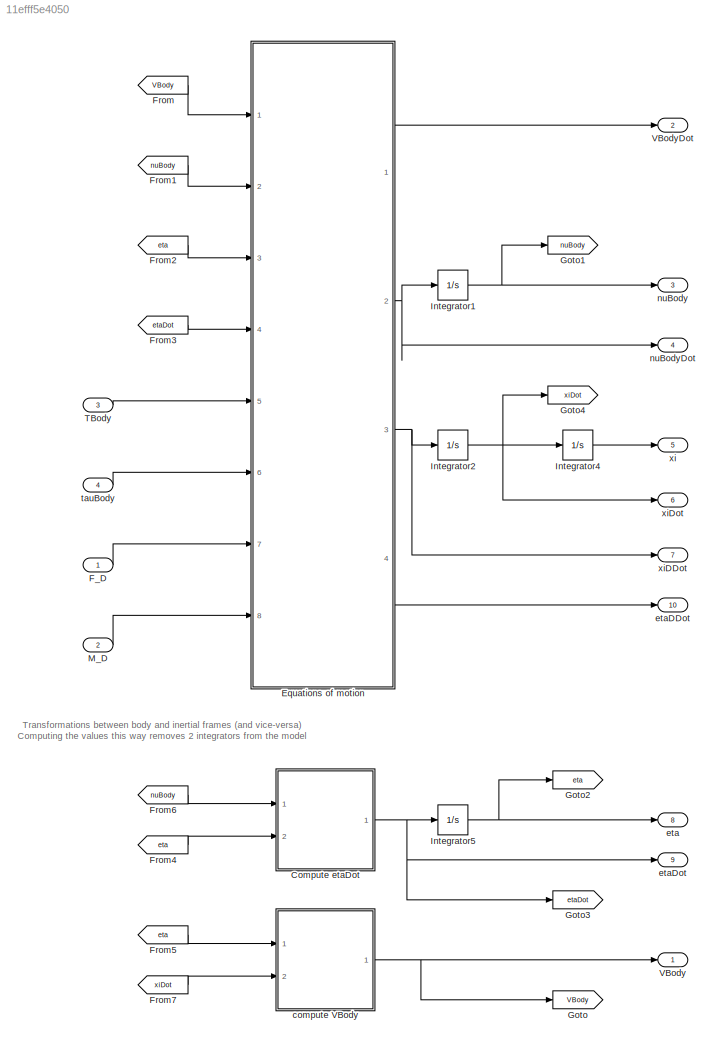
MODEL slx_11efff5e4050
KIND model
CONFIG AbsTol = auto
CONFIG EnableMultiTasking = on
CONFIG FixedStep = auto
CONFIG MaxStep = auto
CONFIG MinStep = auto
CONFIG RelTol = 1e-3
CONFIG SampleTimeConstraint = Unconstrained
CONFIG SolverName = VariableStepAuto
CONFIG StartTime = 0.0
CONFIG StopTime = 10.0
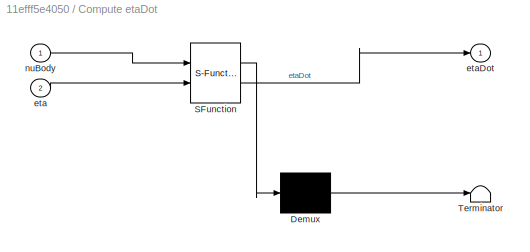
BLOCK [SubSystem] Compute etaDot
  ErrorFcn = Stateflow.Translate.translate
  PermitHierarchicalResolution = ExplicitOnly
  Ports = [2, 1]
  RequestExecContextInheritance = off
  SFBlockType = MATLAB Function
  TreatAsAtomicUnit = on
BLOCK [Demux] Compute etaDot/ Demux 
  Outputs = 1
  Ports = [1, 1]
BLOCK [S-Function] Compute etaDot/ SFunction 
  EnableBusSupport = on
  FunctionName = sf_sfun
  PortCounts = [2 2]
  Ports = [2, 2]
  SFcnIsStateOwnerBlock = off
  SFunctionDeploymentMode = off
  Tag = Stateflow S-Function 12
BLOCK [Terminator] Compute etaDot/ Terminator 
BLOCK [Inport] Compute etaDot/eta
  Port = 2
BLOCK [Outport] Compute etaDot/etaDot
  VectorParamsAs1DForOutWhenUnconnected = off
BLOCK [Inport] Compute etaDot/nuBody
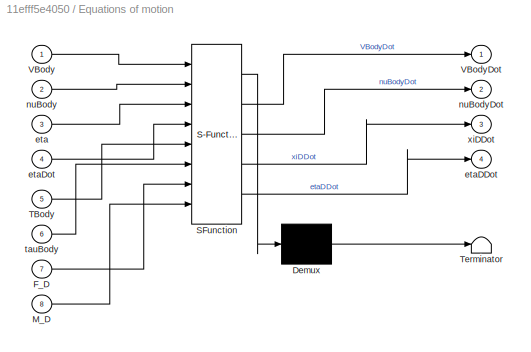
BLOCK [SubSystem] Equations of motion
  ErrorFcn = Stateflow.Translate.translate
  PermitHierarchicalResolution = ExplicitOnly
  Ports = [8, 4]
  RequestExecContextInheritance = off
  SFBlockType = MATLAB Function
  TreatAsAtomicUnit = on
BLOCK [Demux] Equations of motion/ Demux 
  Outputs = 1
  Ports = [1, 1]
BLOCK [S-Function] Equations of motion/ SFunction 
  EnableBusSupport = on
  FunctionName = sf_sfun
  Parameters = Uav
  PortCounts = [8 5]
  Ports = [8, 5]
  SFcnIsStateOwnerBlock = off
  SFunctionDeploymentMode = off
  Tag = Stateflow S-Function 1
BLOCK [Terminator] Equations of motion/ Terminator 
BLOCK [Inport] Equations of motion/F_D
  Port = 7
BLOCK [Inport] Equations of motion/M_D
  Port = 8
BLOCK [Inport] Equations of motion/TBody
  Port = 5
BLOCK [Inport] Equations of motion/VBody
BLOCK [Outport] Equations of motion/VBodyDot
  VectorParamsAs1DForOutWhenUnconnected = off
BLOCK [Inport] Equations of motion/eta
  Port = 3
BLOCK [Outport] Equations of motion/etaDDot
  Port = 4
  VectorParamsAs1DForOutWhenUnconnected = off
BLOCK [Inport] Equations of motion/etaDot
  Port = 4
BLOCK [Inport] Equations of motion/nuBody
  Port = 2
BLOCK [Outport] Equations of motion/nuBodyDot
  Port = 2
  VectorParamsAs1DForOutWhenUnconnected = off
BLOCK [Inport] Equations of motion/tauBody
  Port = 6
BLOCK [Outport] Equations of motion/xiDDot
  Port = 3
  VectorParamsAs1DForOutWhenUnconnected = off
BLOCK [Inport] F_D
BLOCK [From] From
  GotoTag = VBody
BLOCK [From] From1
  GotoTag = nuBody
BLOCK [From] From2
  GotoTag = eta
BLOCK [From] From3
  GotoTag = etaDot
BLOCK [From] From4
  GotoTag = eta
BLOCK [From] From5
  GotoTag = eta
BLOCK [From] From6
  GotoTag = nuBody
BLOCK [From] From7
  GotoTag = xiDot
BLOCK [Goto] Goto
  GotoTag = VBody
BLOCK [Goto] Goto1
  GotoTag = nuBody
BLOCK [Goto] Goto2
  GotoTag = eta
BLOCK [Goto] Goto3
  GotoTag = etaDot
BLOCK [Goto] Goto4
  GotoTag = xiDot
BLOCK [Integrator] Integrator1
  InitialCondition = Initial.NU_BODY
  Ports = [1, 1]
BLOCK [Integrator] Integrator2
  InitialCondition = Initial.XI_DOT
  Ports = [1, 1]
BLOCK [Integrator] Integrator4
  InitialCondition = Initial.XI
  Ports = [1, 1]
BLOCK [Integrator] Integrator5
  InitialCondition = Initial.ETA
  Ports = [1, 1]
BLOCK [Inport] M_D
  Port = 2
BLOCK [Inport] TBody
  Port = 3
BLOCK [Outport] VBody
  VectorParamsAs1DForOutWhenUnconnected = off
BLOCK [Outport] VBodyDot
  Port = 2
  VectorParamsAs1DForOutWhenUnconnected = off
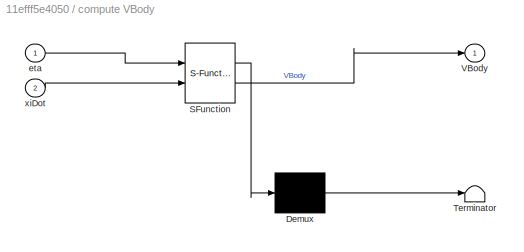
BLOCK [SubSystem] compute VBody
  ErrorFcn = Stateflow.Translate.translate
  PermitHierarchicalResolution = ExplicitOnly
  Ports = [2, 1]
  RequestExecContextInheritance = off
  SFBlockType = MATLAB Function
  TreatAsAtomicUnit = on
BLOCK [Demux] compute VBody/ Demux 
  Outputs = 1
  Ports = [1, 1]
BLOCK [S-Function] compute VBody/ SFunction 
  EnableBusSupport = on
  FunctionName = sf_sfun
  PortCounts = [2 2]
  Ports = [2, 2]
  SFcnIsStateOwnerBlock = off
  SFunctionDeploymentMode = off
  Tag = Stateflow S-Function 14
BLOCK [Terminator] compute VBody/ Terminator 
BLOCK [Outport] compute VBody/VBody
  VectorParamsAs1DForOutWhenUnconnected = off
BLOCK [Inport] compute VBody/eta
BLOCK [Inport] compute VBody/xiDot
  Port = 2
BLOCK [Outport] eta
  Port = 8
  VectorParamsAs1DForOutWhenUnconnected = off
BLOCK [Outport] etaDDot
  Port = 10
  VectorParamsAs1DForOutWhenUnconnected = off
BLOCK [Outport] etaDot
  Port = 9
  VectorParamsAs1DForOutWhenUnconnected = off
BLOCK [Outport] nuBody
  Port = 3
  VectorParamsAs1DForOutWhenUnconnected = off
BLOCK [Outport] nuBodyDot
  Port = 4
  VectorParamsAs1DForOutWhenUnconnected = off
BLOCK [Inport] tauBody
  Port = 4
BLOCK [Outport] xi
  Port = 5
  VectorParamsAs1DForOutWhenUnconnected = off
BLOCK [Outport] xiDDot
  Port = 7
  VectorParamsAs1DForOutWhenUnconnected = off
BLOCK [Outport] xiDot
  Port = 6
  VectorParamsAs1DForOutWhenUnconnected = off
ANNOTATION (root): Transformations between body and inertial frames (and vice-versa) Computing the values this way removes 2 integrators from the model
NET Compute etaDot:1 -> Goto3:1, Integrator5:1, etaDot:1
LINE Equations of motion:1 -> VBodyDot:1
NET Equations of motion:2 -> Integrator1:1, nuBodyDot:1
NET Equations of motion:3 -> Integrator2:1, xiDDot:1
LINE Equations of motion:4 -> etaDDot:1
LINE F_D:1 -> Equations of motion:7
LINE From1:1 -> Equations of motion:2
LINE From2:1 -> Equations of motion:3
LINE From3:1 -> Equations of motion:4
LINE From4:1 -> Compute etaDot:2
LINE From5:1 -> compute VBody:1
LINE From6:1 -> Compute etaDot:1
LINE From7:1 -> compute VBody:2
LINE From:1 -> Equations of motion:1
NET Integrator1:1 -> Goto1:1, nuBody:1
NET Integrator2:1 -> Goto4:1, Integrator4:1, xiDot:1
LINE Integrator4:1 -> xi:1
NET Integrator5:1 -> Goto2:1, eta:1
LINE M_D:1 -> Equations of motion:8
LINE TBody:1 -> Equations of motion:5
NET compute VBody:1 -> Goto:1, VBody:1
LINE tauBody:1 -> Equations of motion:6
note: NET lines group one-source signal fan-out (src -> all destinations, sorted); 1:1 wires keep LINE
CHART Equations of motion states=1 transitions=1
  STATE_LABEL 'eML_blk_kernel()'
  STATE_LABEL 'SCRIPT:\nfunction [VBodyDot, nuBodyDot, xiDDot, etaDDot] = QuadrotorEulerModel(...\n    VBody, nuBody, eta, etaDot, TBody, tauBody, F_D, M_D, Uav)\n%#codegen\n\n%% Rotation matrices\n% Precompute sines and cosines\nsPhi   = sin(eta(1));\nsTheta = sin(eta(2));\nsPsi   = sin(eta(3));\ncPhi   = cos(eta(1));\ncTheta = cos(eta(2));\ncPsi   = cos(eta(3));\ntTheta = tan(eta(2));\n\nphiDot   = etaDot(1);\nthetaDot = etaD...<+1065ch>'
CHART Compute etaDot states=1 transitions=1
  STATE_LABEL 'eML_blk_kernel()'
  STATE_LABEL 'SCRIPT:\nfunction etaDot = computeEtaDot(nuBody, eta)\n%#codegen\n\nsPhi = sin(eta(1));\ncPhi = cos(eta(1));\ncTheta = cos(eta(2));\ntTheta = tan(eta(2));\n      \nWInverse = [1, sPhi*tTheta,  cPhi*tTheta;\n            0, cPhi,        -sPhi;\n            0, sPhi/cTheta,  cPhi/cTheta];\n\netaDot = WInverse*nuBody;'
CHART compute VBody states=1 transitions=1
  STATE_LABEL 'eML_blk_kernel()'
  STATE_LABEL 'SCRIPT:\nfunction VBody = computeVBody(eta, xiDot)\n%#codegen\n\nsphi = sin(eta(1));\nsTheta = sin(eta(2));\nsPsi = sin(eta(3));\ncPhi = cos(eta(1));\ncTheta = cos(eta(2));\ncPsi = cos(eta(3));\n\nR = [ cPsi*cTheta, cPsi*sTheta*sphi-sPsi*cPhi, cPsi*sTheta*cPhi+sPsi*sphi;\n\t  sPsi*cTheta, sPsi*sTheta*sphi+cPsi*cPhi, sPsi*sTheta*cPhi-cPsi*sphi;\n     -sTheta,      cTheta*sphi,                cTheta*cPhi+sPsi*sph...<+22ch>'
CHART  states=0 transitions=0
CHART  states=0 transitions=0
CHART  states=0 transitions=0
